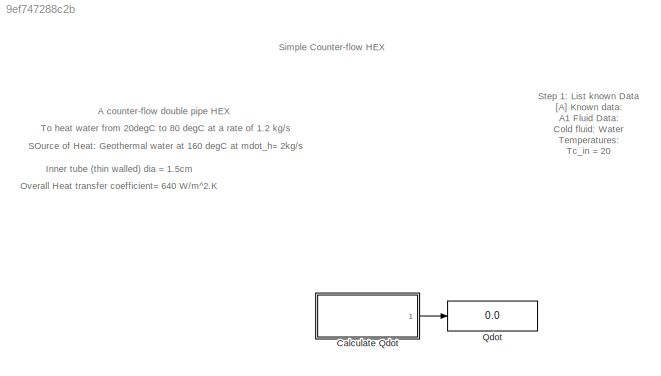
MODEL slx_9ef747288c2b
KIND model
CONFIG AbsTol = auto
CONFIG EnableMultiTasking = off
CONFIG FixedStep = auto
CONFIG MaxStep = auto
CONFIG MinStep = auto
CONFIG RelTol = 1e-3
CONFIG SampleTimeConstraint = Unconstrained
CONFIG SolverName = VariableStepAuto
CONFIG StartTime = 0.0
CONFIG StopTime = 10.0
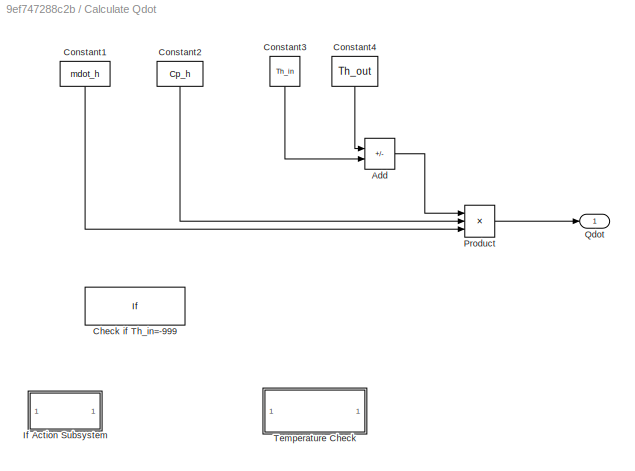
BLOCK [SubSystem] Calculate Qdot
  Ports = [0, 1]
  RequestExecContextInheritance = off
BLOCK [Sum] Calculate Qdot/Add
  IconShape = rectangular
  Inputs = +-
  Ports = [2, 1]
BLOCK [If] Calculate Qdot/Check if Th_in=-999
  Ports = [1, 2]
BLOCK [Constant] Calculate Qdot/Constant1
  NameLocation = left
  Value = mdot_h
BLOCK [Constant] Calculate Qdot/Constant2
  NameLocation = left
  Value = Cp_h
BLOCK [Constant] Calculate Qdot/Constant3
  NameLocation = left
  Value = Th_in
BLOCK [Constant] Calculate Qdot/Constant4
  NameLocation = left
  Value = Th_out
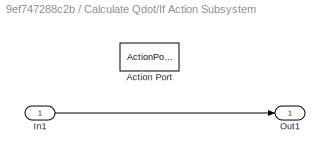
BLOCK [SubSystem] Calculate Qdot/If Action Subsystem
  Ports = [1, 1, 0, 0, 0, 0, 0, 1]
  RequestExecContextInheritance = off
  TreatAsAtomicUnit = on
BLOCK [ActionPort] Calculate Qdot/If Action Subsystem/Action Port
BLOCK [Inport] Calculate Qdot/If Action Subsystem/In1
BLOCK [Outport] Calculate Qdot/If Action Subsystem/Out1
BLOCK [Product] Calculate Qdot/Product
  Inputs = 3
  Ports = [3, 1]
BLOCK [Outport] Calculate Qdot/Qdot
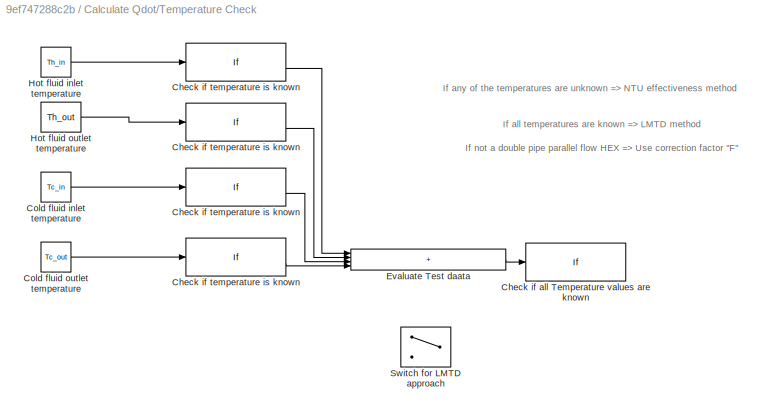
BLOCK [SubSystem] Calculate Qdot/Temperature Check 
  Ports = []
  RequestExecContextInheritance = off
BLOCK [If] Calculate Qdot/Temperature Check /   Check if temperature is known   
  IfExpression = u1 ==-999
  Ports = [1, 2]
BLOCK [If] Calculate Qdot/Temperature Check /  Check if all Temperature values are known  
  IfExpression = u1 <4
  Ports = [1, 2]
BLOCK [If] Calculate Qdot/Temperature Check /  Check if temperature is known  
  IfExpression = u1 ==-999
  Ports = [1, 2]
BLOCK [If] Calculate Qdot/Temperature Check / Check if temperature is known 
  IfExpression = u1 ==-999
  Ports = [1, 2]
BLOCK [If] Calculate Qdot/Temperature Check /Check if temperature is known
  IfExpression = u1 ==-999
  Ports = [1, 2]
BLOCK [Constant] Calculate Qdot/Temperature Check /Cold fluid inlet temperature
  Value = Tc_in
BLOCK [Constant] Calculate Qdot/Temperature Check /Cold fluid outlet temperature
  Value = Tc_out
BLOCK [Sum] Calculate Qdot/Temperature Check /Evaluate Test daata
  IconShape = rectangular
  Inputs = ++++
  Ports = [4, 1]
BLOCK [Constant] Calculate Qdot/Temperature Check /Hot fluid inlet temperature
  Value = Th_in
BLOCK [Constant] Calculate Qdot/Temperature Check /Hot fluid outlet temperature
  Value = Th_out
BLOCK [Switch] Calculate Qdot/Temperature Check /Switch for LMTD approach
  InputSameDT = off
  SaturateOnIntegerOverflow = off
  Threshold = 4
BLOCK [Display] Qdot
  Decimation = 1
  Ports = [1]
ANNOTATION (root): Simple Counter-flow HEX
ANNOTATION (root): Step 1: List known Data [A] Known data: A1 Fluid Data: Cold fluid: Water Temperatures: Tc_in = 20 Tc_out = 80 Fluid properties: mdot_c = 1.2 kg/s Hot fluid: Water Temperatures (degree C): Th_in = 160 Th_out=? Fluid properties: mdot_h = 2 kg/s A2 Construction Data : Di = 1.5 cm = 1.5*10-3 m Do = !! [B] Unknown data: Th_out = ? L = ? [C] Assumptions: [C1] Conditions: 1. Steady operating conditions 2...<+209ch>
ANNOTATION (root): A counter-flow double pipe HEX
ANNOTATION (root): Inner tube (thin walled) dia = 1.5cm
ANNOTATION (root): Overall Heat transfer coefficient= 640 W/m^2.K
ANNOTATION (root): SOurce of Heat: Geothermal water at 160 degC at mdot_h= 2kg/s
ANNOTATION (root): To heat water from 20degC to 80 degC at a rate of 1.2 kg/s
ANNOTATION Calculate Qdot/Temperature Check : If all temperatures are known => LMTD method
ANNOTATION Calculate Qdot/Temperature Check : If any of the temperatures are unknown => NTU effectiveness method
ANNOTATION Calculate Qdot/Temperature Check : If not a double pipe parallel flow HEX => Use correction factor "F"
LINE Calculate Qdot/Add:1 -> Calculate Qdot/Product:1
LINE Calculate Qdot/Constant1:1 -> Calculate Qdot/Product:3
LINE Calculate Qdot/Constant2:1 -> Calculate Qdot/Product:2
LINE Calculate Qdot/Constant3:1 -> Calculate Qdot/Add:2
LINE Calculate Qdot/Constant4:1 -> Calculate Qdot/Add:1
LINE Calculate Qdot/If Action Subsystem/In1:1 -> Calculate Qdot/If Action Subsystem/Out1:1
LINE Calculate Qdot/Product:1 -> Calculate Qdot/Qdot:1
LINE Calculate Qdot/Temperature Check /   Check if temperature is known   :2 -> Calculate Qdot/Temperature Check /Evaluate Test daata:4
LINE Calculate Qdot/Temperature Check /  Check if temperature is known  :2 -> Calculate Qdot/Temperature Check /Evaluate Test daata:2
LINE Calculate Qdot/Temperature Check / Check if temperature is known :2 -> Calculate Qdot/Temperature Check /Evaluate Test daata:3
LINE Calculate Qdot/Temperature Check /Check if temperature is known:2 -> Calculate Qdot/Temperature Check /Evaluate Test daata:1
LINE Calculate Qdot/Temperature Check /Cold fluid inlet temperature:1 -> Calculate Qdot/Temperature Check / Check if temperature is known :1
LINE Calculate Qdot/Temperature Check /Cold fluid outlet temperature:1 -> Calculate Qdot/Temperature Check /   Check if temperature is known   :1
LINE Calculate Qdot/Temperature Check /Evaluate Test daata:1 -> Calculate Qdot/Temperature Check /  Check if all Temperature values are known  :1
LINE Calculate Qdot/Temperature Check /Hot fluid inlet temperature:1 -> Calculate Qdot/Temperature Check /Check if temperature is known:1
LINE Calculate Qdot/Temperature Check /Hot fluid outlet temperature:1 -> Calculate Qdot/Temperature Check /  Check if temperature is known  :1
LINE Calculate Qdot:1 -> Qdot:1
